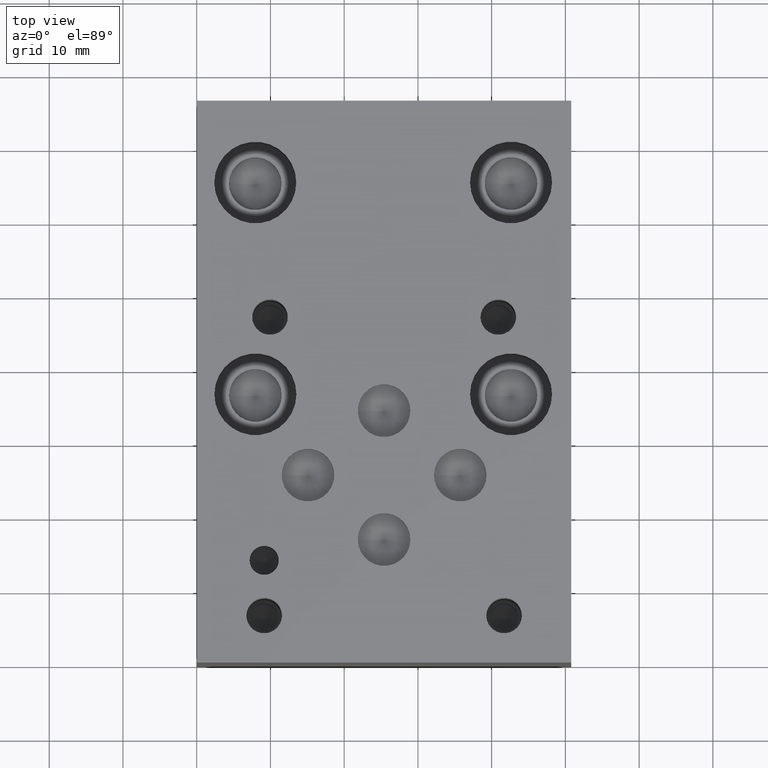
[diagram: clean part render]
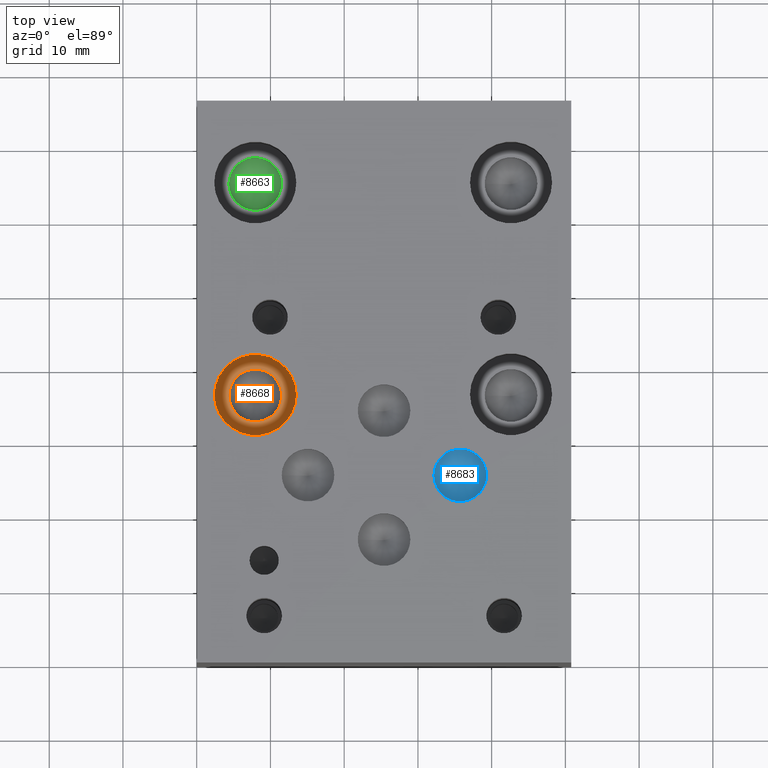
[diagram: same view with three faces highlighted in distinct colors, each labeled with its STEP entity id]
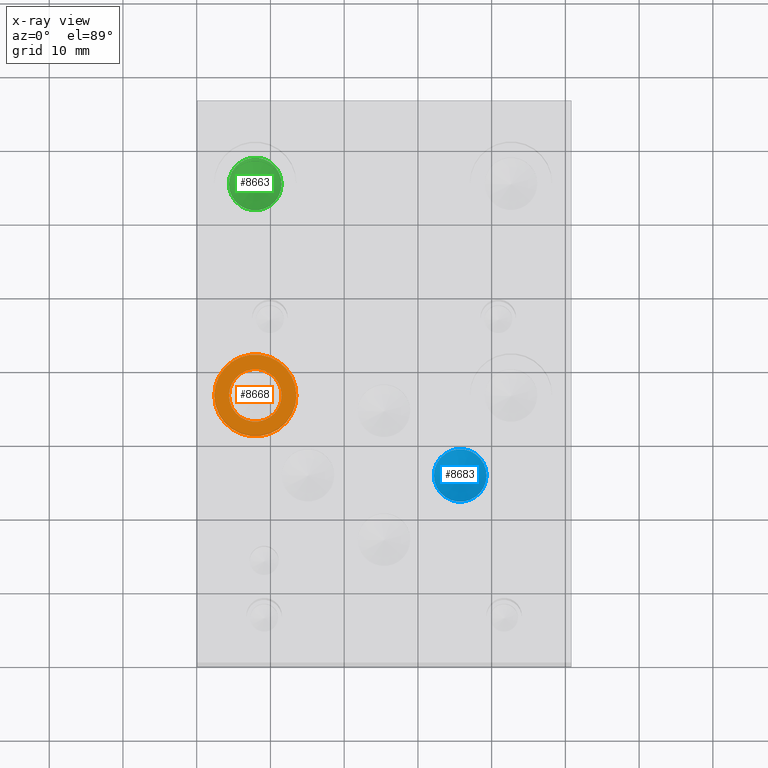
[diagram: x-ray of the same camera — body ghosted, the three highlighted faces saturated]
A machine part, top view with three faces highlighted in distinct colors.
The next image is the same camera in x-ray (body ghosted, the three faces saturated) — at least one of them is partly hidden behind the body in this view.
Their STEP definitions:

[orange] entity #8668 — the highlighted planar face has unit normal (0, 0, 1).
#93=CIRCLE('',#9096,5.5626);
#94=CIRCLE('',#9097,5.5626);
#95=CIRCLE('',#9098,3.5687);
#482=FACE_BOUND('',#1386,.T.);
#907=FACE_OUTER_BOUND('',#1385,.T.);
#1385=EDGE_LOOP('',(#7379,#7380));
#1386=EDGE_LOOP('',(#7381));
#3981=VERTEX_POINT('',#14353);
#3982=VERTEX_POINT('',#14354);
#3983=VERTEX_POINT('',#14357);
#5143=EDGE_CURVE('',#3981,#3982,#93,.T.);
#5144=EDGE_CURVE('',#3982,#3981,#94,.T.);
#5145=EDGE_CURVE('',#3983,#3983,#95,.T.);
#7379=ORIENTED_EDGE('',*,*,#5143,.T.);
#7380=ORIENTED_EDGE('',*,*,#5144,.T.);
#7381=ORIENTED_EDGE('',*,*,#5145,.F.);
#7905=PLANE('',#9095);
#8668=ADVANCED_FACE('',(#907,#482),#7905,.T.);
#9095=AXIS2_PLACEMENT_3D('',#14352,#10804,#10805);
#9096=AXIS2_PLACEMENT_3D('',#14355,#10806,#10807);
#9097=AXIS2_PLACEMENT_3D('',#14356,#10808,#10809);
#9098=AXIS2_PLACEMENT_3D('',#14358,#10810,#10811);
#10804=DIRECTION('center_axis',(0.,0.,1.));
#10805=DIRECTION('ref_axis',(1.,0.,0.));
#10806=DIRECTION('center_axis',(0.,0.,1.));
#10807=DIRECTION('ref_axis',(1.,0.,0.));
#10808=DIRECTION('center_axis',(0.,0.,1.));
#10809=DIRECTION('ref_axis',(1.,0.,0.));
#10810=DIRECTION('center_axis',(0.,0.,1.));
#10811=DIRECTION('ref_axis',(1.,0.,0.));
#14352=CARTESIAN_POINT('Origin',(7.9502,36.3728,28.575));
#14353=CARTESIAN_POINT('',(13.5128,36.3728,28.575));
#14354=CARTESIAN_POINT('',(2.3876,36.3728,28.575));
#14355=CARTESIAN_POINT('Origin',(7.9502,36.3728,28.575));
#14356=CARTESIAN_POINT('Origin',(7.9502,36.3728,28.575));
#14357=CARTESIAN_POINT('',(4.3815,36.3728,28.575));
#14358=CARTESIAN_POINT('Origin',(7.9502,36.3728,28.575));

[blue] entity #8683 — the highlighted conical surface has half-angle 60 deg.
#29=CONICAL_SURFACE('',#9137,1.78435,1.0471975511966);
#120=CIRCLE('',#9138,3.5687);
#121=CIRCLE('',#9139,3.5687);
#922=FACE_OUTER_BOUND('',#1403,.T.);
#1403=EDGE_LOOP('',(#7449,#7450,#7451,#7452));
#2326=LINE('',#14442,#3221);
#3221=VECTOR('',#10904,1.78435);
#4012=VERTEX_POINT('',#14438);
#4013=VERTEX_POINT('',#14439);
#4014=VERTEX_POINT('',#14441);
#5182=EDGE_CURVE('',#4012,#4013,#120,.T.);
#5183=EDGE_CURVE('',#4013,#4014,#2326,.T.);
#5184=EDGE_CURVE('',#4013,#4012,#121,.T.);
#7449=ORIENTED_EDGE('',*,*,#5182,.T.);
#7450=ORIENTED_EDGE('',*,*,#5183,.T.);
#7451=ORIENTED_EDGE('',*,*,#5183,.F.);
#7452=ORIENTED_EDGE('',*,*,#5184,.T.);
#8683=ADVANCED_FACE('',(#922),#29,.F.);
#9137=AXIS2_PLACEMENT_3D('',#14437,#10900,#10901);
#9138=AXIS2_PLACEMENT_3D('',#14440,#10902,#10903);
#9139=AXIS2_PLACEMENT_3D('',#14443,#10905,#10906);
#10900=DIRECTION('center_axis',(0.,0.,1.));
#10901=DIRECTION('ref_axis',(1.,0.,0.));
#10902=DIRECTION('center_axis',(0.,0.,1.));
#10903=DIRECTION('ref_axis',(1.,0.,0.));
#10904=DIRECTION('',(0.866025403784439,1.06057523872491E-16,-0.5));
#10905=DIRECTION('center_axis',(0.,0.,1.));
#10906=DIRECTION('ref_axis',(1.,0.,0.));
#14437=CARTESIAN_POINT('Origin',(35.7378,25.4,35.0094150471715));
#14438=CARTESIAN_POINT('',(39.3065,25.4,36.03961));
#14439=CARTESIAN_POINT('',(32.1691,25.4,36.03961));
#14440=CARTESIAN_POINT('Origin',(35.7378,25.4,36.03961));
#14441=CARTESIAN_POINT('',(35.7378,25.4,33.979220094343));
#14442=CARTESIAN_POINT('',(33.95345,25.4,35.0094150471715));
#14443=CARTESIAN_POINT('Origin',(35.7378,25.4,36.03961));

[green] entity #8663 — the highlighted conical surface has half-angle 60 deg.
#23=CONICAL_SURFACE('',#9081,1.78435,1.0471975511966);
#84=CIRCLE('',#9082,3.5687);
#85=CIRCLE('',#9083,3.5687);
#902=FACE_OUTER_BOUND('',#1379,.T.);
#1379=EDGE_LOOP('',(#7357,#7358,#7359,#7360));
#2310=LINE('',#14328,#3205);
#3205=VECTOR('',#10776,1.78435);
#3970=VERTEX_POINT('',#14324);
#3971=VERTEX_POINT('',#14325);
#3972=VERTEX_POINT('',#14327);
#5130=EDGE_CURVE('',#3970,#3971,#84,.T.);
#5131=EDGE_CURVE('',#3971,#3972,#2310,.T.);
#5132=EDGE_CURVE('',#3971,#3970,#85,.T.);
#7357=ORIENTED_EDGE('',*,*,#5130,.T.);
#7358=ORIENTED_EDGE('',*,*,#5131,.T.);
#7359=ORIENTED_EDGE('',*,*,#5131,.F.);
#7360=ORIENTED_EDGE('',*,*,#5132,.T.);
#8663=ADVANCED_FACE('',(#902),#23,.F.);
#9081=AXIS2_PLACEMENT_3D('',#14323,#10772,#10773);
#9082=AXIS2_PLACEMENT_3D('',#14326,#10774,#10775);
#9083=AXIS2_PLACEMENT_3D('',#14329,#10777,#10778);
#10772=DIRECTION('center_axis',(0.,0.,1.));
#10773=DIRECTION('ref_axis',(1.,0.,0.));
#10774=DIRECTION('center_axis',(0.,0.,1.));
#10775=DIRECTION('ref_axis',(1.,0.,0.));
#10776=DIRECTION('',(0.866025403784439,1.06057523872491E-16,-0.5));
#10777=DIRECTION('center_axis',(0.,0.,1.));
#10778=DIRECTION('ref_axis',(1.,0.,0.));
#14323=CARTESIAN_POINT('Origin',(7.9375,65.0875,25.4844150471715));
#14324=CARTESIAN_POINT('',(11.5062,65.0875,26.51461));
#14325=CARTESIAN_POINT('',(4.3688,65.0875,26.51461));
#14326=CARTESIAN_POINT('Origin',(7.9375,65.0875,26.51461));
#14327=CARTESIAN_POINT('',(7.9375,65.0875,24.454220094343));
#14328=CARTESIAN_POINT('',(6.15315,65.0875,25.4844150471715));
#14329=CARTESIAN_POINT('Origin',(7.9375,65.0875,26.51461));